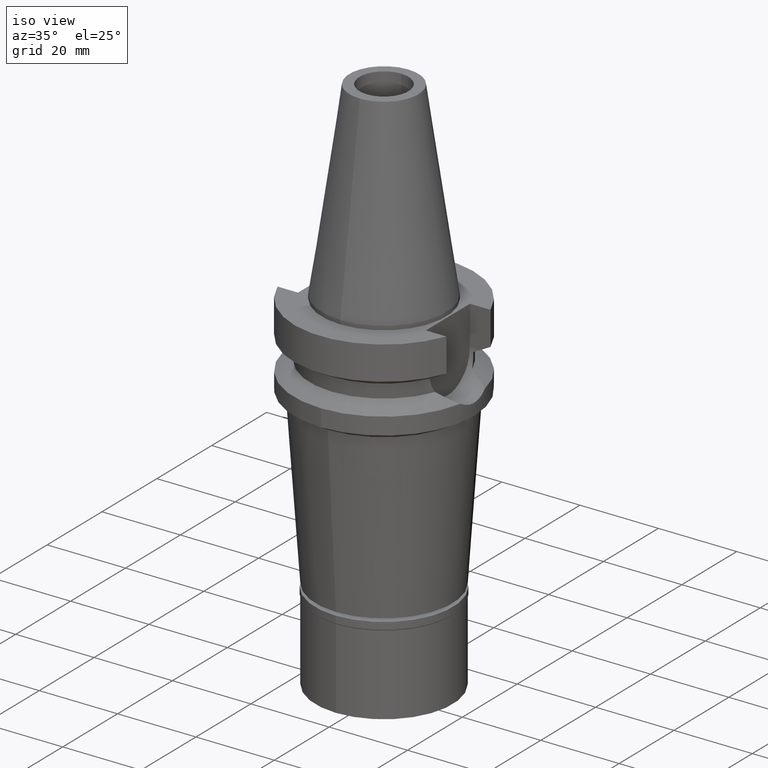
[diagram: clean part render]
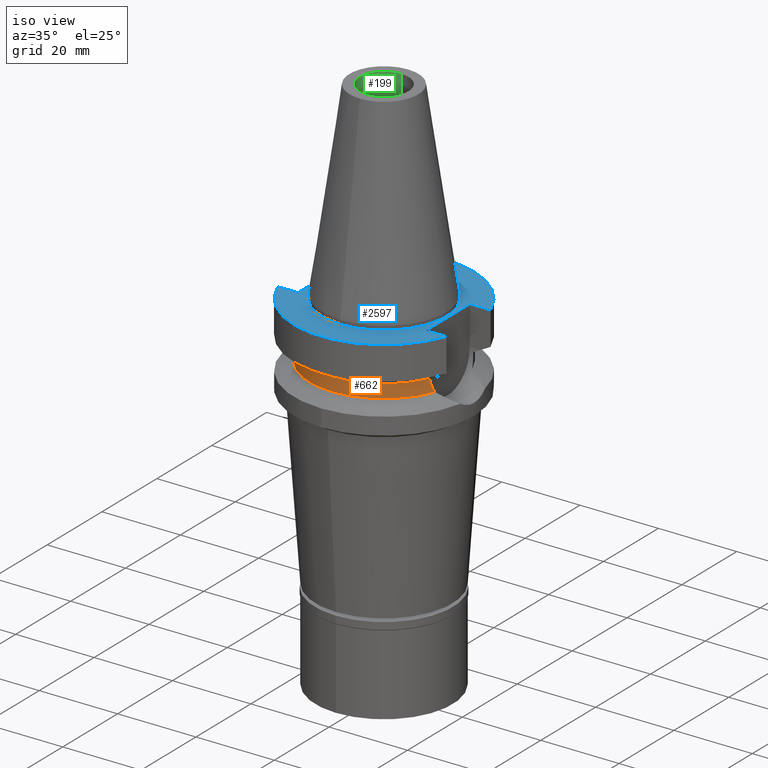
[diagram: same view with three faces highlighted in distinct colors, each labeled with its STEP entity id]
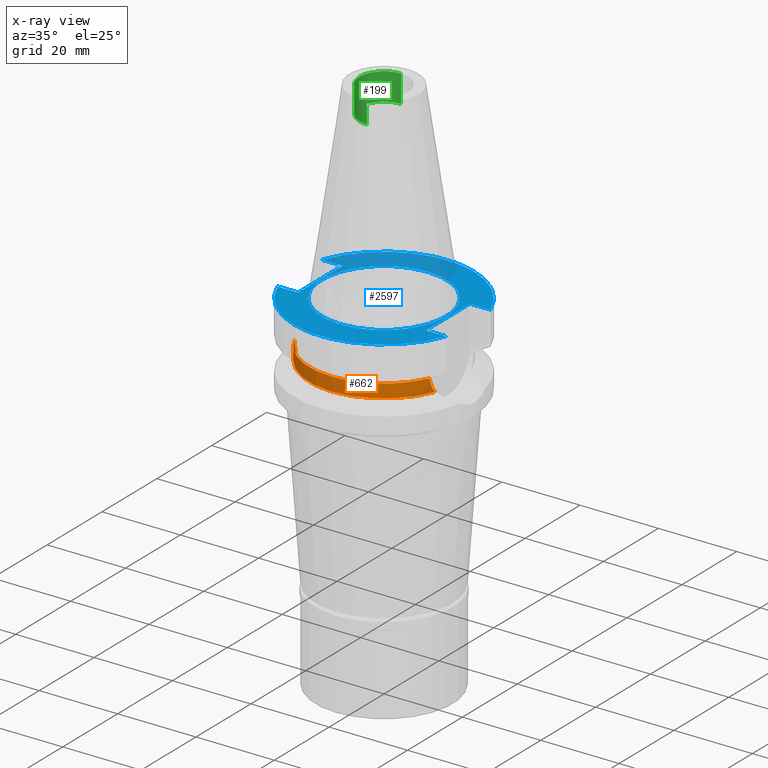
[diagram: x-ray of the same camera — body ghosted, the three highlighted faces saturated]
A machine part, iso view with three faces highlighted in distinct colors.
The next image is the same camera in x-ray (body ghosted, the three faces saturated) — at least one of them is partly hidden behind the body in this view.
Their STEP definitions:

[orange] entity #662 — the highlighted cylindrical surface (partial cylindrical patch) has radius 19 mm, axis along (0, 0, -1).
#6 = VERTEX_POINT ( 'NONE', #365 ) ;
#65 = VERTEX_POINT ( 'NONE', #1990 ) ;
#142 = CARTESIAN_POINT ( 'NONE',  ( 17.27395772732930013, -7.913379800553383525, -12.45762674819685323 ) ) ;
#194 = CARTESIAN_POINT ( 'NONE',  ( 17.40050758145360632, -7.630565565504821457, -13.51508960615575639 ) ) ;
#229 = AXIS2_PLACEMENT_3D ( 'NONE', #2319, #961, #376 ) ;
#262 = CARTESIAN_POINT ( 'NONE',  ( -17.62114728965395116, -7.108330574576632088, -14.74101777716710160 ) ) ;
#293 = ORIENTED_EDGE ( 'NONE', *, *, #1786, .F. ) ;
#365 = CARTESIAN_POINT ( 'NONE',  ( 17.23531135313000107, -7.996501749111999402, -11.87660739354000050 ) ) ;
#369 = CARTESIAN_POINT ( 'NONE',  ( 17.23531135313000107, -7.996501749111999402, -11.87660739354000050 ) ) ;
#376 = DIRECTION ( 'NONE',  ( 0.0000000000000000000, -1.000000000000000000, 0.0000000000000000000 ) ) ;
#388 = CARTESIAN_POINT ( 'NONE',  ( 17.41902886904462022, -7.588145056447470616, -13.63749496349985257 ) ) ;
#421 = CARTESIAN_POINT ( 'NONE',  ( -17.26628428877149446, -7.929745229197038725, -12.45263121938651985 ) ) ;
#444 = CARTESIAN_POINT ( 'NONE',  ( -17.45721622717184829, -7.500114418629928892, -13.87568910922046506 ) ) ;
#503 = CARTESIAN_POINT ( 'NONE',  ( 17.75736593456000278, -6.758398853743999624, -15.32339055352999857 ) ) ;
#628 = CARTESIAN_POINT ( 'NONE',  ( 17.75736593456000278, -6.758398853743999624, -15.32339055352999857 ) ) ;
#662 = ADVANCED_FACE ( 'NONE', ( #2593 ), #909, .T. ) ;
#698 = CARTESIAN_POINT ( 'NONE',  ( -17.53685925040699445, -7.312726842105840674, -14.31911649677020471 ) ) ;
#710 = CARTESIAN_POINT ( 'NONE',  ( -17.42913852640172578, -7.564920785720927299, -13.70227250419844012 ) ) ;
#716 = B_SPLINE_CURVE_WITH_KNOTS ( 'NONE', 3,
 ( #1062, #1882, #262, #698, #2908, #3018, #444, #2325, #710, #868, #2542, #1621, #1871, #421, #2064 ),
 .UNSPECIFIED., .F., .F.,
 ( 4, 2, 2, 1, 1, 1, 2, 2, 4 ),
 ( 0.0000000000000000000, 0.2499999999999951705, 0.3749999999999929501, 0.4374999999999921174, 0.4687499999999926170, 0.4843749999999927280, 0.4921874999999929501, 0.4999999999999931166, 1.000000000000000000 ),
 .UNSPECIFIED. ) ;
#728 = ORIENTED_EDGE ( 'NONE', *, *, #1916, .T. ) ;
#736 = ORIENTED_EDGE ( 'NONE', *, *, #2495, .T. ) ;
#789 = EDGE_CURVE ( 'NONE', #6, #2044, #1730, .T. ) ;
#847 = CARTESIAN_POINT ( 'NONE',  ( 17.41029288300091338, -7.608179589571716583, -13.58035844458879282 ) ) ;
#868 = CARTESIAN_POINT ( 'NONE',  ( -17.42529035807689297, -7.573770179181386730, -13.67774275266039474 ) ) ;
#893 = CARTESIAN_POINT ( 'NONE',  ( 17.41740973184774077, -7.591861673420408074, -13.62698225823840303 ) ) ;
#905 = DIRECTION ( 'NONE',  ( 0.0000000000000000000, 0.0000000000000000000, 1.000000000000000000 ) ) ;
#909 = CYLINDRICAL_SURFACE ( 'NONE', #2823, 19.00000000000000000 ) ;
#931 = CARTESIAN_POINT ( 'NONE',  ( 0.0000000000000000000, 0.0000000000000000000, 0.0000000000000000000 ) ) ;
#961 = DIRECTION ( 'NONE',  ( 0.0000000000000000000, 0.0000000000000000000, -1.000000000000000000 ) ) ;
#1062 = CARTESIAN_POINT ( 'NONE',  ( -17.75736593456000278, -6.758398853743999624, -15.32339055352999857 ) ) ;
#1080 = CARTESIAN_POINT ( 'NONE',  ( 17.32020187248921772, -7.811452264172603854, -12.90108126290883739 ) ) ;
#1425 = EDGE_LOOP ( 'NONE', ( #293, #728, #2974, #736 ) ) ;
#1456 = CIRCLE ( 'NONE', #229, 19.00000000000000000 ) ;
#1606 = CARTESIAN_POINT ( 'NONE',  ( 0.0000000000000000000, 0.0000000000000000000, -15.32339055352999857 ) ) ;
#1621 = CARTESIAN_POINT ( 'NONE',  ( -17.42165591776776523, -7.582123399470170000, -13.65444127732681245 ) ) ;
#1730 = B_SPLINE_CURVE_WITH_KNOTS ( 'NONE', 3,
 ( #369, #2269, #142, #1080, #2309, #2024, #2558, #194, #847, #3005, #893, #388, #2043, #1788, #628 ),
 .UNSPECIFIED., .F., .F.,
 ( 4, 2, 2, 1, 1, 1, 2, 2, 4 ),
 ( 0.0000000000000000000, 0.2500000000000048295, 0.3750000000000078271, 0.4375000000000092704, 0.4687500000000104916, 0.4843750000000111022, 0.4921875000000112688, 0.5000000000000114353, 1.000000000000000000 ),
 .UNSPECIFIED. ) ;
#1786 = EDGE_CURVE ( 'NONE', #2368, #65, #716, .T. ) ;
#1788 = CARTESIAN_POINT ( 'NONE',  ( 17.61322740977063006, -7.137115852429626095, -14.73814199214981180 ) ) ;
#1841 = DIRECTION ( 'NONE',  ( 0.0000000000000000000, 0.0000000000000000000, -1.000000000000000000 ) ) ;
#1871 = CARTESIAN_POINT ( 'NONE',  ( -17.32791680505555831, -7.797408658810238258, -13.04851916292124692 ) ) ;
#1882 = CARTESIAN_POINT ( 'NONE',  ( -17.68528418001084290, -6.947790175626559872, -15.03071555068035181 ) ) ;
#1916 = EDGE_CURVE ( 'NONE', #2368, #2044, #2737, .T. ) ;
#1990 = CARTESIAN_POINT ( 'NONE',  ( -17.23531622872000213, -7.996491146969001207, -11.87660607765000087 ) ) ;
#2024 = CARTESIAN_POINT ( 'NONE',  ( 17.36640948879380630, -7.707982828176216827, -13.27282317297279590 ) ) ;
#2043 = CARTESIAN_POINT ( 'NONE',  ( 17.50086807617385531, -7.400179108631100178, -14.16641331418214378 ) ) ;
#2044 = VERTEX_POINT ( 'NONE', #503 ) ;
#2064 = CARTESIAN_POINT ( 'NONE',  ( -17.23531622872000213, -7.996491146969001207, -11.87660607765000087 ) ) ;
#2269 = CARTESIAN_POINT ( 'NONE',  ( 17.25079912589399456, -7.963111191519515408, -12.16468723334847724 ) ) ;
#2309 = CARTESIAN_POINT ( 'NONE',  ( 17.33753429471035901, -7.772924035424132683, -13.04956639070095292 ) ) ;
#2319 = CARTESIAN_POINT ( 'NONE',  ( 0.0000000000000000000, 0.0000000000000000000, -11.87660944646999894 ) ) ;
#2325 = CARTESIAN_POINT ( 'NONE',  ( -17.43828051761150277, -7.543867038500548183, -13.75975511332498691 ) ) ;
#2367 = DIRECTION ( 'NONE',  ( 0.0000000000000000000, -1.000000000000000000, 0.0000000000000000000 ) ) ;
#2368 = VERTEX_POINT ( 'NONE', #2501 ) ;
#2495 = EDGE_CURVE ( 'NONE', #6, #65, #1456, .T. ) ;
#2501 = CARTESIAN_POINT ( 'NONE',  ( -17.75736593456000278, -6.758398853743999624, -15.32339055352999857 ) ) ;
#2542 = CARTESIAN_POINT ( 'NONE',  ( -17.42274042983988736, -7.579631478955776380, -13.66141326524954280 ) ) ;
#2558 = CARTESIAN_POINT ( 'NONE',  ( 17.38156622602346246, -7.673725376885411009, -13.38458314353863798 ) ) ;
#2593 = FACE_OUTER_BOUND ( 'NONE', #1425, .T. ) ;
#2606 = AXIS2_PLACEMENT_3D ( 'NONE', #1606, #905, #2367 ) ;
#2737 = CIRCLE ( 'NONE', #2606, 19.00000000000000000 ) ;
#2794 = DIRECTION ( 'NONE',  ( 0.0000000000000000000, -1.000000000000000000, 0.0000000000000000000 ) ) ;
#2823 = AXIS2_PLACEMENT_3D ( 'NONE', #931, #1841, #2794 ) ;
#2908 = CARTESIAN_POINT ( 'NONE',  ( -17.51074945337274613, -7.374797396836243024, -14.18056436359429462 ) ) ;
#2974 = ORIENTED_EDGE ( 'NONE', *, *, #789, .F. ) ;
#3005 = CARTESIAN_POINT ( 'NONE',  ( 17.41455400305665435, -7.598412036639295764, -13.60833259783796478 ) ) ;
#3018 = CARTESIAN_POINT ( 'NONE',  ( -17.47456408189346178, -7.459707853905101160, -13.97666143172861375 ) ) ;

[blue] entity #2597 — the highlighted planar face has unit normal (0, 0, -1).
#47 = DIRECTION ( 'NONE',  ( 0.0000000000000000000, 0.0000000000000000000, -1.000000000000000000 ) ) ;
#103 = ORIENTED_EDGE ( 'NONE', *, *, #260, .T. ) ;
#144 = CARTESIAN_POINT ( 'NONE',  ( 0.0000000000000000000, 0.0000000000000000000, -1.000000000000000000 ) ) ;
#149 = CIRCLE ( 'NONE', #1228, 15.87500000000000000 ) ;
#182 = EDGE_CURVE ( 'NONE', #2347, #1005, #346, .T. ) ;
#260 = EDGE_CURVE ( 'NONE', #1460, #956, #2795, .T. ) ;
#290 = DIRECTION ( 'NONE',  ( 0.0000000000000000000, 0.0000000000000000000, -1.000000000000000000 ) ) ;
#346 = LINE ( 'NONE', #2723, #1174 ) ;
#350 = ORIENTED_EDGE ( 'NONE', *, *, #1375, .F. ) ;
#364 = VERTEX_POINT ( 'NONE', #1207 ) ;
#382 = CARTESIAN_POINT ( 'NONE',  ( -16.29999999999999716, -8.050000000000000711, -1.000000000000000000 ) ) ;
#389 = DIRECTION ( 'NONE',  ( 0.0000000000000000000, 1.000000000000000000, 0.0000000000000000000 ) ) ;
#412 = DIRECTION ( 'NONE',  ( 1.000000000000000000, 9.313164748262000573E-14, 0.0000000000000000000 ) ) ;
#431 = DIRECTION ( 'NONE',  ( 0.0000000000000000000, 0.0000000000000000000, -1.000000000000000000 ) ) ;
#476 = DIRECTION ( 'NONE',  ( 0.0000000000000000000, -1.000000000000000000, 0.0000000000000000000 ) ) ;
#489 = EDGE_LOOP ( 'NONE', ( #1462, #584 ) ) ;
#579 = EDGE_LOOP ( 'NONE', ( #935, #1572, #103, #1327, #2877, #1017, #1445, #350 ) ) ;
#584 = ORIENTED_EDGE ( 'NONE', *, *, #686, .F. ) ;
#601 = EDGE_CURVE ( 'NONE', #1037, #956, #2966, .T. ) ;
#654 = AXIS2_PLACEMENT_3D ( 'NONE', #1861, #290, #476 ) ;
#677 = CARTESIAN_POINT ( 'NONE',  ( 0.0000000000000000000, -15.87500000000000000, -1.000000000000000000 ) ) ;
#686 = EDGE_CURVE ( 'NONE', #1419, #1324, #149, .T. ) ;
#719 = CARTESIAN_POINT ( 'NONE',  ( 0.0000000000000000000, 15.87500000000000000, -1.000000000000000000 ) ) ;
#720 = AXIS2_PLACEMENT_3D ( 'NONE', #2294, #431, #1613 ) ;
#766 = EDGE_CURVE ( 'NONE', #1220, #1037, #806, .T. ) ;
#806 = LINE ( 'NONE', #2667, #2084 ) ;
#829 = LINE ( 'NONE', #382, #2494 ) ;
#832 = EDGE_CURVE ( 'NONE', #1460, #2347, #1286, .T. ) ;
#875 = DIRECTION ( 'NONE',  ( 0.0000000000000000000, -1.000000000000000000, 0.0000000000000000000 ) ) ;
#894 = CARTESIAN_POINT ( 'NONE',  ( 0.0000000000000000000, 0.0000000000000000000, -1.000000000000000000 ) ) ;
#904 = DIRECTION ( 'NONE',  ( 0.0000000000000000000, 1.000000000000000000, 0.0000000000000000000 ) ) ;
#935 = ORIENTED_EDGE ( 'NONE', *, *, #182, .F. ) ;
#956 = VERTEX_POINT ( 'NONE', #2478 ) ;
#988 = CARTESIAN_POINT ( 'NONE',  ( 0.0000000000000000000, 0.0000000000000000000, -1.000000000000000000 ) ) ;
#1005 = VERTEX_POINT ( 'NONE', #2983 ) ;
#1017 = ORIENTED_EDGE ( 'NONE', *, *, #1755, .F. ) ;
#1037 = VERTEX_POINT ( 'NONE', #1976 ) ;
#1118 = CARTESIAN_POINT ( 'NONE',  ( 21.54524309446999908, -8.050000000000000711, -1.000000000000000000 ) ) ;
#1124 = EDGE_CURVE ( 'NONE', #1324, #1419, #1880, .T. ) ;
#1174 = VECTOR ( 'NONE', #412, 1000.000000000000000 ) ;
#1179 = VECTOR ( 'NONE', #2068, 1000.000000000000000 ) ;
#1207 = CARTESIAN_POINT ( 'NONE',  ( -21.54524309446999908, 8.050000000000000711, -1.000000000000000000 ) ) ;
#1216 = LINE ( 'NONE', #2152, #1985 ) ;
#1220 = VERTEX_POINT ( 'NONE', #2787 ) ;
#1228 = AXIS2_PLACEMENT_3D ( 'NONE', #144, #2987, #875 ) ;
#1235 = DIRECTION ( 'NONE',  ( -1.000000000000000000, -9.380896855521999773E-14, 0.0000000000000000000 ) ) ;
#1286 = CIRCLE ( 'NONE', #654, 23.00000000000000000 ) ;
#1324 = VERTEX_POINT ( 'NONE', #719 ) ;
#1327 = ORIENTED_EDGE ( 'NONE', *, *, #601, .F. ) ;
#1375 = EDGE_CURVE ( 'NONE', #1005, #1737, #829, .T. ) ;
#1392 = CARTESIAN_POINT ( 'NONE',  ( -16.29999999999999716, 8.050000000000000711, -1.000000000000000000 ) ) ;
#1419 = VERTEX_POINT ( 'NONE', #677 ) ;
#1445 = ORIENTED_EDGE ( 'NONE', *, *, #2136, .T. ) ;
#1454 = DIRECTION ( 'NONE',  ( 1.000000000000000000, -9.347030801892000173E-14, 0.0000000000000000000 ) ) ;
#1460 = VERTEX_POINT ( 'NONE', #2619 ) ;
#1462 = ORIENTED_EDGE ( 'NONE', *, *, #1124, .F. ) ;
#1554 = DIRECTION ( 'NONE',  ( 0.0000000000000000000, -1.000000000000000000, 0.0000000000000000000 ) ) ;
#1572 = ORIENTED_EDGE ( 'NONE', *, *, #832, .F. ) ;
#1613 = DIRECTION ( 'NONE',  ( -0.9367496997597649644, 0.3499999999999864886, 0.0000000000000000000 ) ) ;
#1737 = VERTEX_POINT ( 'NONE', #1392 ) ;
#1755 = EDGE_CURVE ( 'NONE', #364, #1220, #2036, .T. ) ;
#1789 = CARTESIAN_POINT ( 'NONE',  ( 16.29999999999999716, 8.050000000000000711, -1.000000000000000000 ) ) ;
#1861 = CARTESIAN_POINT ( 'NONE',  ( 0.0000000000000000000, 0.0000000000000000000, -1.000000000000000000 ) ) ;
#1880 = CIRCLE ( 'NONE', #2680, 15.87500000000000000 ) ;
#1976 = CARTESIAN_POINT ( 'NONE',  ( 16.29999999999999716, 8.050000000000000711, -1.000000000000000000 ) ) ;
#1985 = VECTOR ( 'NONE', #1454, 1000.000000000000000 ) ;
#2036 = CIRCLE ( 'NONE', #720, 23.00000000000000355 ) ;
#2068 = DIRECTION ( 'NONE',  ( -1.000000000000000000, 9.347030801892000173E-14, 0.0000000000000000000 ) ) ;
#2084 = VECTOR ( 'NONE', #1235, 1000.000000000000000 ) ;
#2136 = EDGE_CURVE ( 'NONE', #364, #1737, #1216, .T. ) ;
#2152 = CARTESIAN_POINT ( 'NONE',  ( -21.54524309446999908, 8.050000000000000711, -1.000000000000000000 ) ) ;
#2294 = CARTESIAN_POINT ( 'NONE',  ( 0.0000000000000000000, 0.0000000000000000000, -1.000000000000000000 ) ) ;
#2347 = VERTEX_POINT ( 'NONE', #2695 ) ;
#2443 = FACE_OUTER_BOUND ( 'NONE', #579, .T. ) ;
#2478 = CARTESIAN_POINT ( 'NONE',  ( 16.29999999999999716, -8.050000000000000711, -1.000000000000000000 ) ) ;
#2480 = VECTOR ( 'NONE', #1554, 1000.000000000000000 ) ;
#2494 = VECTOR ( 'NONE', #904, 1000.000000000000000 ) ;
#2527 = DIRECTION ( 'NONE',  ( 0.0000000000000000000, 0.0000000000000000000, 1.000000000000000000 ) ) ;
#2597 = ADVANCED_FACE ( 'NONE', ( #2443, #2677 ), #2641, .F. ) ;
#2619 = CARTESIAN_POINT ( 'NONE',  ( 21.54524309446999908, -8.050000000000000711, -1.000000000000000000 ) ) ;
#2641 = PLANE ( 'NONE',  #2694 ) ;
#2667 = CARTESIAN_POINT ( 'NONE',  ( 21.54524309446999908, 8.050000000000000711, -1.000000000000000000 ) ) ;
#2677 = FACE_BOUND ( 'NONE', #489, .T. ) ;
#2680 = AXIS2_PLACEMENT_3D ( 'NONE', #894, #2527, #389 ) ;
#2694 = AXIS2_PLACEMENT_3D ( 'NONE', #988, #47, #2868 ) ;
#2695 = CARTESIAN_POINT ( 'NONE',  ( -21.54524309446999908, -8.050000000000000711, -1.000000000000000000 ) ) ;
#2723 = CARTESIAN_POINT ( 'NONE',  ( -21.54524309446999908, -8.050000000000000711, -1.000000000000000000 ) ) ;
#2787 = CARTESIAN_POINT ( 'NONE',  ( 21.54524309446999908, 8.050000000000000711, -1.000000000000000000 ) ) ;
#2795 = LINE ( 'NONE', #1118, #1179 ) ;
#2868 = DIRECTION ( 'NONE',  ( 0.0000000000000000000, -1.000000000000000000, 0.0000000000000000000 ) ) ;
#2877 = ORIENTED_EDGE ( 'NONE', *, *, #766, .F. ) ;
#2966 = LINE ( 'NONE', #1789, #2480 ) ;
#2983 = CARTESIAN_POINT ( 'NONE',  ( -16.29999999999999716, -8.050000000000000711, -1.000000000000000000 ) ) ;
#2987 = DIRECTION ( 'NONE',  ( 0.0000000000000000000, 0.0000000000000000000, 1.000000000000000000 ) ) ;

[green] entity #199 — the highlighted cylindrical surface (edge-blend (fillet) strip) has radius 6.25 mm, axis along (0, 0, -1).
#1 = DIRECTION ( 'NONE',  ( 0.0000000000000000000, 0.0000000000000000000, 1.000000000000000000 ) ) ;
#20 = AXIS2_PLACEMENT_3D ( 'NONE', #2100, #1627, #196 ) ;
#39 = CARTESIAN_POINT ( 'NONE',  ( 0.0000000000000000000, -6.250000000000000000, 48.39999999999999858 ) ) ;
#111 = CIRCLE ( 'NONE', #1648, 6.250000000000000000 ) ;
#137 = ORIENTED_EDGE ( 'NONE', *, *, #2039, .T. ) ;
#165 = VECTOR ( 'NONE', #1, 1000.000000000000000 ) ;
#196 = DIRECTION ( 'NONE',  ( 0.0000000000000000000, -1.000000000000000000, 0.0000000000000000000 ) ) ;
#199 = ADVANCED_FACE ( 'NONE', ( #599 ), #1574, .F. ) ;
#223 = DIRECTION ( 'NONE',  ( 0.0000000000000000000, 0.0000000000000000000, 1.000000000000000000 ) ) ;
#249 = AXIS2_PLACEMENT_3D ( 'NONE', #2576, #667, #2746 ) ;
#285 = CARTESIAN_POINT ( 'NONE',  ( 0.0000000000000000000, 6.250000000000000000, 41.39999999999999858 ) ) ;
#305 = DIRECTION ( 'NONE',  ( 0.0000000000000000000, 1.000000000000000000, 0.0000000000000000000 ) ) ;
#390 = ORIENTED_EDGE ( 'NONE', *, *, #454, .F. ) ;
#454 = EDGE_CURVE ( 'NONE', #2678, #940, #708, .T. ) ;
#495 = ORIENTED_EDGE ( 'NONE', *, *, #2601, .T. ) ;
#599 = FACE_OUTER_BOUND ( 'NONE', #1997, .T. ) ;
#612 = VERTEX_POINT ( 'NONE', #2559 ) ;
#667 = DIRECTION ( 'NONE',  ( 0.0000000000000000000, 0.0000000000000000000, -1.000000000000000000 ) ) ;
#708 = LINE ( 'NONE', #1214, #790 ) ;
#790 = VECTOR ( 'NONE', #223, 1000.000000000000000 ) ;
#940 = VERTEX_POINT ( 'NONE', #39 ) ;
#1010 = DIRECTION ( 'NONE',  ( 0.0000000000000000000, 0.0000000000000000000, 1.000000000000000000 ) ) ;
#1214 = CARTESIAN_POINT ( 'NONE',  ( 0.0000000000000000000, -6.250000000000000000, 41.39999999999999858 ) ) ;
#1501 = CIRCLE ( 'NONE', #20, 6.250000000000000000 ) ;
#1509 = CARTESIAN_POINT ( 'NONE',  ( 0.0000000000000000000, 6.250000000000000000, 48.39999999999999858 ) ) ;
#1574 = CYLINDRICAL_SURFACE ( 'NONE', #249, 6.250000000000000000 ) ;
#1627 = DIRECTION ( 'NONE',  ( 0.0000000000000000000, 0.0000000000000000000, -1.000000000000000000 ) ) ;
#1648 = AXIS2_PLACEMENT_3D ( 'NONE', #2416, #1010, #305 ) ;
#1997 = EDGE_LOOP ( 'NONE', ( #495, #390, #2490, #137 ) ) ;
#2039 = EDGE_CURVE ( 'NONE', #612, #2273, #2409, .T. ) ;
#2100 = CARTESIAN_POINT ( 'NONE',  ( 0.0000000000000000000, 0.0000000000000000000, 41.39999999999999858 ) ) ;
#2273 = VERTEX_POINT ( 'NONE', #1509 ) ;
#2409 = LINE ( 'NONE', #285, #165 ) ;
#2416 = CARTESIAN_POINT ( 'NONE',  ( 0.0000000000000000000, 0.0000000000000000000, 48.39999999999999858 ) ) ;
#2490 = ORIENTED_EDGE ( 'NONE', *, *, #2887, .T. ) ;
#2559 = CARTESIAN_POINT ( 'NONE',  ( 0.0000000000000000000, 6.250000000000000000, 41.39999999999999858 ) ) ;
#2576 = CARTESIAN_POINT ( 'NONE',  ( 0.0000000000000000000, 0.0000000000000000000, 0.0000000000000000000 ) ) ;
#2601 = EDGE_CURVE ( 'NONE', #2273, #940, #111, .T. ) ;
#2678 = VERTEX_POINT ( 'NONE', #2689 ) ;
#2689 = CARTESIAN_POINT ( 'NONE',  ( 0.0000000000000000000, -6.250000000000000000, 41.39999999999999858 ) ) ;
#2746 = DIRECTION ( 'NONE',  ( 0.0000000000000000000, -1.000000000000000000, 0.0000000000000000000 ) ) ;
#2887 = EDGE_CURVE ( 'NONE', #2678, #612, #1501, .T. ) ;